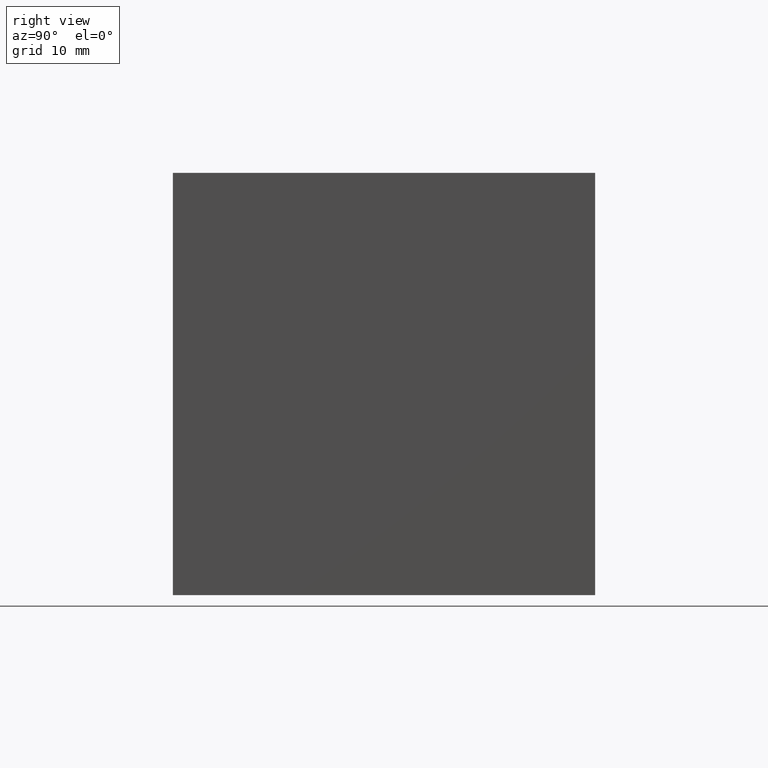
[diagram: clean part render]
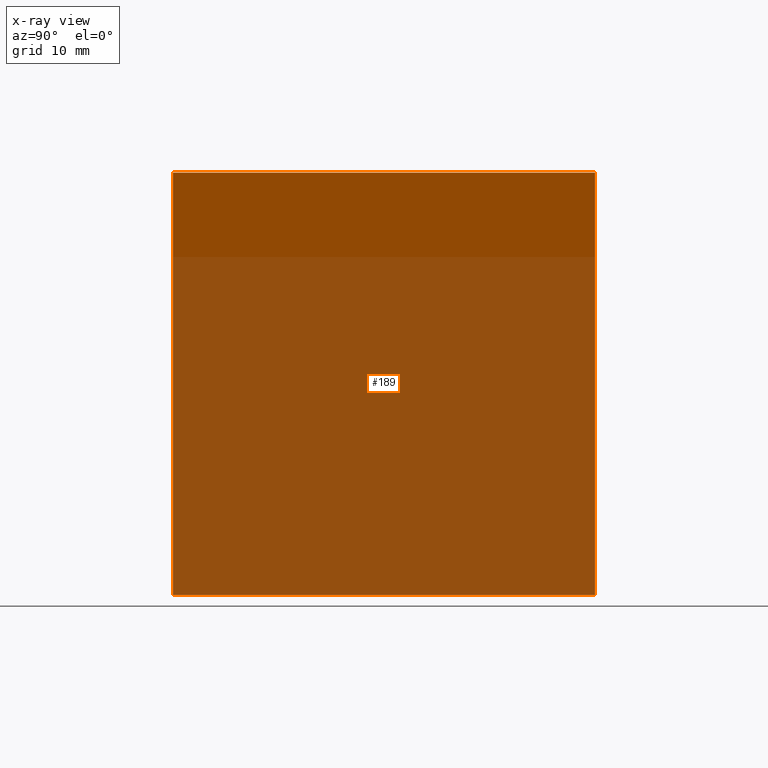
[diagram: x-ray — body ghosted, one internal face saturated and labeled with its STEP entity id]
A machine part, right view, then the same camera in x-ray: the body is ghosted and one INTERNAL B-rep face — a face not visible from any outside direction — is saturated and labeled: STEP entity #189.
In plain terms, the highlighted planar face has unit normal (0.7071, 0, -0.7071).
Its self-contained STEP definition (entity closure, byte-faithful):
#1 = EDGE_CURVE ( 'NONE', #24, #55, #176, .T. ) ;
#12 = CARTESIAN_POINT ( 'NONE',  ( -50.00000000000000000, 0.0000000000000000000, -49.99999999999999300 ) ) ;
#21 = ORIENTED_EDGE ( 'NONE', *, *, #298, .F. ) ;
#24 = VERTEX_POINT ( 'NONE', #132 ) ;
#27 = CARTESIAN_POINT ( 'NONE',  ( -50.00000000000000000, 50.00000000000000000, -49.99999999999999300 ) ) ;
#55 = VERTEX_POINT ( 'NONE', #12 ) ;
#63 = ORIENTED_EDGE ( 'NONE', *, *, #196, .T. ) ;
#66 = VECTOR ( 'NONE', #69, 1000.000000000000000 ) ;
#69 = DIRECTION ( 'NONE',  ( 0.7071067811865475700, 0.0000000000000000000, 0.7071067811865474600 ) ) ;
#86 = VECTOR ( 'NONE', #128, 1000.000000000000000 ) ;
#98 = AXIS2_PLACEMENT_3D ( 'NONE', #142, #258, #276 ) ;
#104 = CARTESIAN_POINT ( 'NONE',  ( 0.0000000000000000000, 50.00000000000000000, 0.0000000000000000000 ) ) ;
#112 = CARTESIAN_POINT ( 'NONE',  ( -50.00000000000000000, 50.00000000000000000, -49.99999999999999300 ) ) ;
#117 = EDGE_LOOP ( 'NONE', ( #63, #256, #21, #267 ) ) ;
#122 = VECTOR ( 'NONE', #245, 1000.000000000000000 ) ;
#128 = DIRECTION ( 'NONE',  ( -0.0000000000000000000, -1.000000000000000000, -0.0000000000000000000 ) ) ;
#132 = CARTESIAN_POINT ( 'NONE',  ( -50.00000000000000000, 50.00000000000000000, -49.99999999999999300 ) ) ;
#134 = LINE ( 'NONE', #27, #122 ) ;
#136 = VERTEX_POINT ( 'NONE', #214 ) ;
#141 = LINE ( 'NONE', #104, #86 ) ;
#142 = CARTESIAN_POINT ( 'NONE',  ( -50.00000000000000000, 50.00000000000000000, -49.99999999999999300 ) ) ;
#176 = LINE ( 'NONE', #112, #195 ) ;
#179 = VERTEX_POINT ( 'NONE', #278 ) ;
#189 = ADVANCED_FACE ( 'NONE', ( #281 ), #296, .F. ) ;
#195 = VECTOR ( 'NONE', #262, 1000.000000000000000 ) ;
#196 = EDGE_CURVE ( 'NONE', #55, #136, #204, .T. ) ;
#204 = LINE ( 'NONE', #235, #66 ) ;
#214 = CARTESIAN_POINT ( 'NONE',  ( 0.0000000000000000000, 0.0000000000000000000, 0.0000000000000000000 ) ) ;
#235 = CARTESIAN_POINT ( 'NONE',  ( -50.00000000000000000, 0.0000000000000000000, -49.99999999999999300 ) ) ;
#245 = DIRECTION ( 'NONE',  ( 0.7071067811865475700, 0.0000000000000000000, 0.7071067811865474600 ) ) ;
#256 = ORIENTED_EDGE ( 'NONE', *, *, #270, .F. ) ;
#258 = DIRECTION ( 'NONE',  ( 0.7071067811865474600, 0.0000000000000000000, -0.7071067811865476800 ) ) ;
#262 = DIRECTION ( 'NONE',  ( -0.0000000000000000000, -1.000000000000000000, -0.0000000000000000000 ) ) ;
#267 = ORIENTED_EDGE ( 'NONE', *, *, #1, .T. ) ;
#270 = EDGE_CURVE ( 'NONE', #179, #136, #141, .T. ) ;
#276 = DIRECTION ( 'NONE',  ( -0.7071067811865476800, 0.0000000000000000000, -0.7071067811865474600 ) ) ;
#278 = CARTESIAN_POINT ( 'NONE',  ( 0.0000000000000000000, 50.00000000000000000, 0.0000000000000000000 ) ) ;
#281 = FACE_OUTER_BOUND ( 'NONE', #117, .T. ) ;
#296 = PLANE ( 'NONE',  #98 ) ;
#298 = EDGE_CURVE ( 'NONE', #24, #179, #134, .T. ) ;